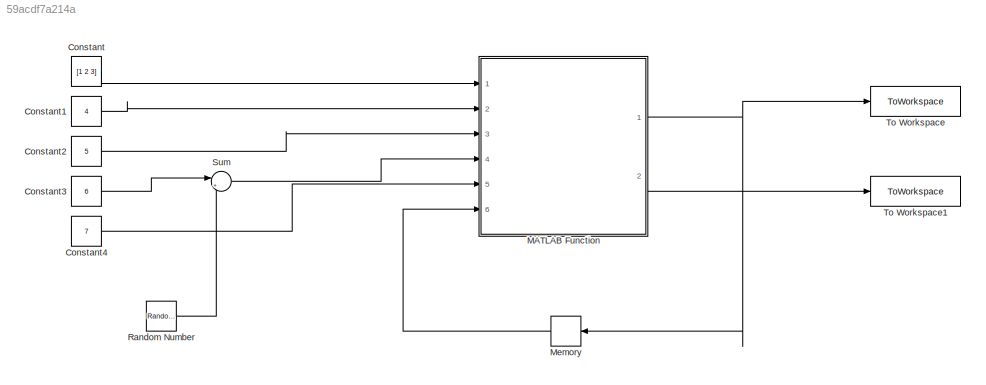
MODEL slx_59acdf7a214a
KIND model
CONFIG AbsTol = auto
CONFIG EnableMultiTasking = off
CONFIG FixedStep = auto
CONFIG MaxStep = auto
CONFIG MinStep = auto
CONFIG RelTol = 1e-3
CONFIG SampleTimeConstraint = Unconstrained
CONFIG Solver = VariableStepAuto
CONFIG SolverName = VariableStepAuto
CONFIG StartTime = 0.0
CONFIG StopTime = 10
BLOCK [Constant] Constant
  Value = [1 2 3]
BLOCK [Constant] Constant1
  Value = 4
BLOCK [Constant] Constant2
  Value = 5
BLOCK [Constant] Constant3
  Value = 6
BLOCK [Constant] Constant4
  Value = 7
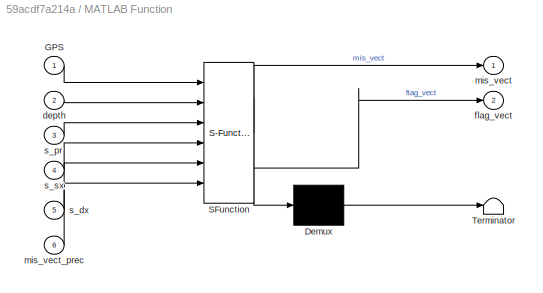
BLOCK [SubSystem] MATLAB Function
  ErrorFcn = Stateflow.Translate.translate
  PermitHierarchicalResolution = ExplicitOnly
  Ports = [6, 2]
  RequestExecContextInheritance = off
  SFBlockType = MATLAB Function
  TreatAsAtomicUnit = on
BLOCK [Demux] MATLAB Function/ Demux 
  Outputs = 1
  Ports = [1, 1]
BLOCK [S-Function] MATLAB Function/ SFunction 
  EnableBusSupport = on
  FunctionName = sf_sfun
  PortCounts = [6 3]
  Ports = [6, 3]
  SFcnIsStateOwnerBlock = off
  SFunctionDeploymentMode = off
  Tag = Stateflow S-Function 9
BLOCK [Terminator] MATLAB Function/ Terminator 
BLOCK [Inport] MATLAB Function/GPS
BLOCK [Inport] MATLAB Function/depth
  Port = 2
BLOCK [Outport] MATLAB Function/flag_vect
  Port = 2
BLOCK [Outport] MATLAB Function/mis_vect
BLOCK [Inport] MATLAB Function/mis_vect_prec
  Port = 6
BLOCK [Inport] MATLAB Function/s_dx
  Port = 5
BLOCK [Inport] MATLAB Function/s_pr
  Port = 3
BLOCK [Inport] MATLAB Function/s_sx
  Port = 4
BLOCK [Memory] Memory
  NameLocation = top
BLOCK [RandomNumber] Random Number
  SampleTime = 2
BLOCK [Sum] Sum
  Inputs = |++
  Ports = [2, 1]
BLOCK [ToWorkspace] To Workspace
  FixptAsFi = on
  MaxDataPoints = inf
  Ports = [1]
  SampleTime = -1
  SaveFormat = Timeseries
  VariableName = mis_vect
BLOCK [ToWorkspace] To Workspace1
  FixptAsFi = on
  MaxDataPoints = inf
  Ports = [1]
  SampleTime = -1
  SaveFormat = Timeseries
  VariableName = flag_vect
LINE Constant1:1 -> MATLAB Function:2
LINE Constant2:1 -> MATLAB Function:3
LINE Constant3:1 -> Sum:1
LINE Constant4:1 -> MATLAB Function:5
LINE Constant:1 -> MATLAB Function:1
NET MATLAB Function:1 -> Memory:1, To Workspace:1
LINE MATLAB Function:2 -> To Workspace1:1
LINE Memory:1 -> MATLAB Function:6
LINE Random Number:1 -> Sum:2
LINE Sum:1 -> MATLAB Function:4
note: NET lines group one-source signal fan-out (src -> all destinations, sorted); 1:1 wires keep LINE
CHART MATLAB Function states=1 transitions=1
  STATE_LABEL 'eML_blk_kernel()'
  STATE_LABEL "SCRIPT:\nfunction [mis_vect,flag_vect] = misure_vector(GPS,depth,s_pr,s_sx,s_dx, mis_vect_prec)\n    \n    mis_vect = zeros(7,1);\n    flag_vect = zeros(7,1);\n\tmis_vect = [GPS(1) GPS(2) GPS(3) depth s_pr s_sx s_dx]';\n    \n    for i=[1:7]\n        if mis_vect(i) ~= mis_vect_prec(i)\n            flag_vect(i) = 1;\n        end\n    end\n\nend\n\n%{\nGPS=[1 2 3];\ndepth= 4;\ns_pr=5;\ns_sx=6;\ns_dx=7;\n%}"
CHART  states=0 transitions=0
